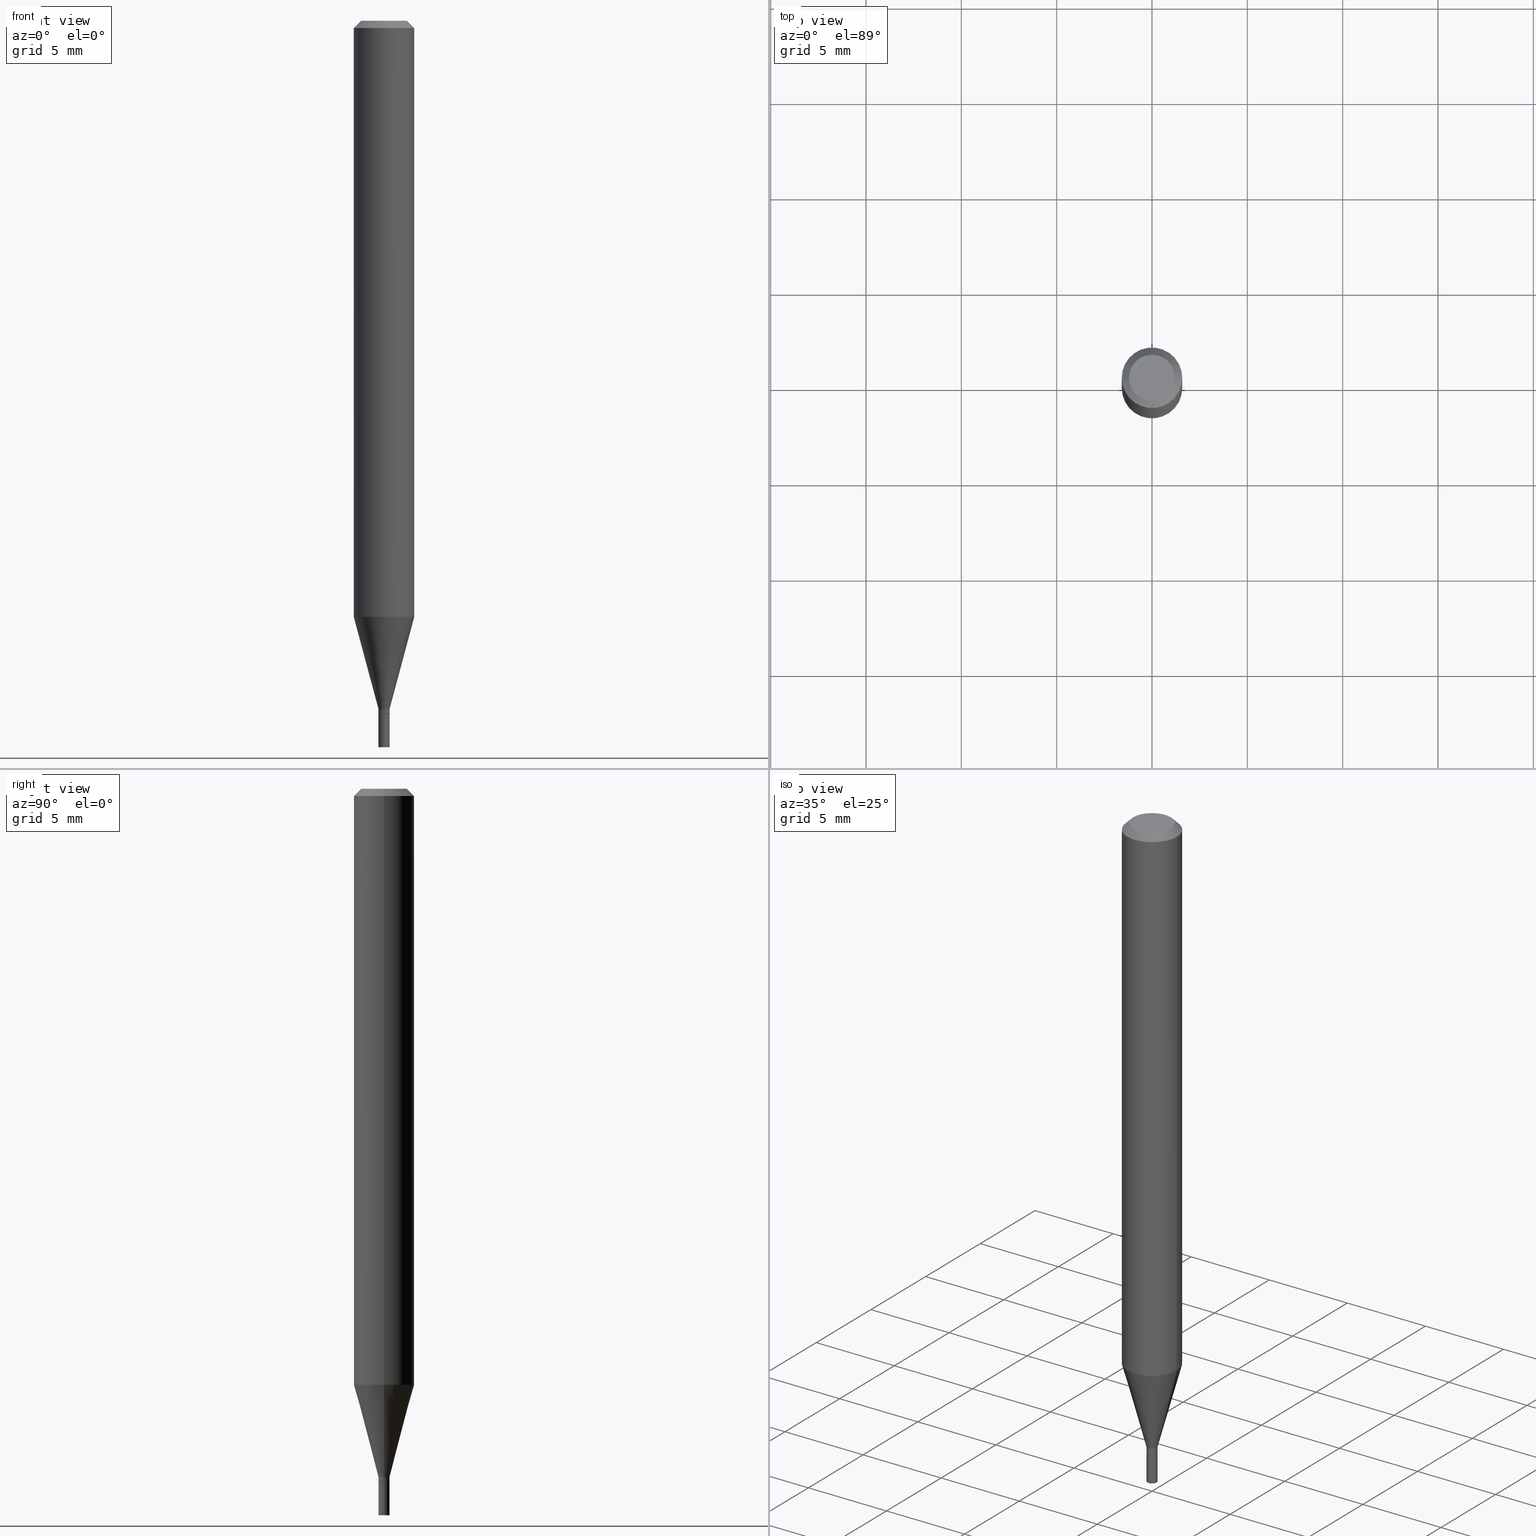
[diagram: canonical four-view strip — front | top / right | iso, engineering-drawing reading convention]
A machine part, canonical four-view strip (front | top / right | iso — engineering-drawing reading convention). The complete STEP part file that produces these views, byte-faithful:
ISO-10303-21;
HEADER;
FILE_DESCRIPTION (( 'STEP AP203' ),
    '1' );
FILE_NAME ('00532.STEP',
    '2024-03-19T21:33:18',
    ( '' ),
    ( '' ),
    'SwSTEP 2.0',
    'SolidWorks 2023',
    '' );
FILE_SCHEMA (( 'CONFIG_CONTROL_DESIGN' ));
ENDSEC;

DATA;
#1 = ORIENTED_EDGE ( 'NONE', *, *, #354, .T. ) ;
#2 = PERSON_AND_ORGANIZATION ( #157, #165 ) ;
#3 = CALENDAR_DATE ( 2024, 19, 3 ) ;
#4 = EDGE_CURVE ( 'NONE', #210, #382, #367, .T. ) ;
#5 = AXIS2_PLACEMENT_3D ( 'NONE', #356, #330, #303 ) ;
#6 = DIRECTION ( 'NONE',  ( -1.000000000000000000, 6.982962677686265922E-15, -4.876176775795935793E-29 ) ) ;
#7 = APPLICATION_PROTOCOL_DEFINITION ( 'international standard', 'config_control_design', 1994, #37 ) ;
#8 = CC_DESIGN_PERSON_AND_ORGANIZATION_ASSIGNMENT ( #368, #257, ( #42 ) ) ;
#9 = DIRECTION ( 'NONE',  ( -2.445468806185136597E-29, 3.491481338843145583E-15, 1.000000000000000000 ) ) ;
#10 = DIRECTION ( 'NONE',  ( -2.445468806185136597E-29, 3.491481338843145583E-15, 1.000000000000000000 ) ) ;
#11 = AXIS2_PLACEMENT_3D ( 'NONE', #435, #100, #6 ) ;
#12 = EDGE_LOOP ( 'NONE', ( #1, #214, #171, #169 ) ) ;
#13 = DIRECTION ( 'NONE',  ( 1.000000000000000000, -6.982962677686267499E-15, 4.852736867747366768E-29 ) ) ;
#14 = EDGE_CURVE ( 'NONE', #416, #250, #222, .T. ) ;
#15 = CYLINDRICAL_SURFACE ( 'NONE', #144, 0.01149999999999992174 ) ;
#16 = LINE ( 'NONE', #445, #63 ) ;
#17 = DIRECTION ( 'NONE',  ( -2.445468806185136597E-29, 3.491481338843145583E-15, 1.000000000000000000 ) ) ;
#18 = DIRECTION ( 'NONE',  ( 1.000000000000000000, -6.982962677686266711E-15, 4.876176775795935793E-29 ) ) ;
#19 = VECTOR ( 'NONE', #200, 39.37007874015748143 ) ;
#20 = CARTESIAN_POINT ( 'NONE',  ( 3.499465861650930802E-29, -4.996309795884541218E-15, -1.431000000000000050 ) ) ;
#21 = CARTESIAN_POINT ( 'NONE',  ( 3.499465861650930802E-29, -4.996309795884541218E-15, -1.431000000000000050 ) ) ;
#22 = ORIENTED_EDGE ( 'NONE', *, *, #433, .F. ) ;
#23 = EDGE_LOOP ( 'NONE', ( #365, #192, #321, #211 ) ) ;
#24 = AXIS2_PLACEMENT_3D ( 'NONE', #378, #51, #13 ) ;
#25 = APPROVAL_PERSON_ORGANIZATION ( #215, #232, #436 ) ;
#26 = DIRECTION ( 'NONE',  ( 1.000000000000000000, -6.982962677686266711E-15, 4.876176775795935793E-29 ) ) ;
#27 = PLANE ( 'NONE',  #5 ) ;
#28 = ADVANCED_FACE ( 'NONE', ( #180 ), #34, .F. ) ;
#29 = VERTEX_POINT ( 'NONE', #74 ) ;
#30 = PERSON_AND_ORGANIZATION_ROLE ( 'creator' ) ;
#31 = CIRCLE ( 'NONE', #459, 0.06250000000000000000 ) ;
#32 = EDGE_CURVE ( 'NONE', #432, #58, #48, .T. ) ;
#33 = CARTESIAN_POINT ( 'NONE',  ( 0.000000000000000000, 0.000000000000000000, 0.000000000000000000 ) ) ;
#34 = PLANE ( 'NONE',  #11 ) ;
#35 = PERSON_AND_ORGANIZATION_ROLE ( 'design_owner' ) ;
#36 = ADVANCED_FACE ( 'NONE', ( #406 ), #47, .F. ) ;
#37 = APPLICATION_CONTEXT ( 'configuration controlled 3d designs of mechanical parts and assemblies' ) ;
#38 = EDGE_LOOP ( 'NONE', ( #248, #217, #457, #294 ) ) ;
#39 = CONICAL_SURFACE ( 'NONE', #350, 0.06250000000000000000, 0.7853981633974386201 ) ;
#40 = CC_DESIGN_APPROVAL ( #128, ( #134 ) ) ;
#41 = FACE_OUTER_BOUND ( 'NONE', #38, .T. ) ;
#42 = PRODUCT_DEFINITION ( 'UNKNOWN', '', #134, #423 ) ;
#43 = DIRECTION ( 'NONE',  ( 1.000000000000000000, -6.982962677686267499E-15, 4.876176775795935793E-29 ) ) ;
#44 = CARTESIAN_POINT ( 'NONE',  ( 3.009553868105685827E-29, -4.296845309233809826E-15, -1.230665408813987893 ) ) ;
#45 = DIRECTION ( 'NONE',  ( 1.000000000000000000, -6.982962677686254878E-15, 0.000000000000000000 ) ) ;
#46 = AXIS2_PLACEMENT_3D ( 'NONE', #20, #216, #390 ) ;
#47 = PLANE ( 'NONE',  #346 ) ;
#48 = CIRCLE ( 'NONE', #79, 0.04749999999999999362 ) ;
#49 = FACE_OUTER_BOUND ( 'NONE', #352, .T. ) ;
#50 = EDGE_CURVE ( 'NONE', #416, #56, #274, .T. ) ;
#51 = DIRECTION ( 'NONE',  ( -2.445468806185136597E-29, 3.491481338843145583E-15, 1.000000000000000000 ) ) ;
#52 = APPLICATION_CONTEXT ( 'configuration controlled 3d designs of mechanical parts and assemblies' ) ;
#53 = LINE ( 'NONE', #203, #221 ) ;
#54 = VECTOR ( 'NONE', #349, 39.37007874015748143 ) ;
#55 = ORIENTED_EDGE ( 'NONE', *, *, #309, .T. ) ;
#56 = VERTEX_POINT ( 'NONE', #230 ) ;
#57 = EDGE_LOOP ( 'NONE', ( #155, #247, #387, #386 ) ) ;
#58 = VERTEX_POINT ( 'NONE', #306 ) ;
#59 = AXIS2_PLACEMENT_3D ( 'NONE', #419, #86, #384 ) ;
#60 = APPROVAL_PERSON_ORGANIZATION ( #255, #280, #189 ) ;
#61 = CLOSED_SHELL ( 'NONE', ( #342, #392, #224, #28 ) ) ;
#62 = PERSON_AND_ORGANIZATION_ROLE ( 'classification_officer' ) ;
#63 = VECTOR ( 'NONE', #348, 39.37007874015748143 ) ;
#64 = EDGE_LOOP ( 'NONE', ( #244, #82 ) ) ;
#65 = EDGE_CURVE ( 'NONE', #56, #412, #332, .T. ) ;
#66 = COORDINATED_UNIVERSAL_TIME_OFFSET ( 5, 0, .BEHIND. ) ;
#67 = CARTESIAN_POINT ( 'NONE',  ( 0.01100000000000000110, -5.073122385339090530E-15, -1.431000000000000050 ) ) ;
#68 =( NAMED_UNIT ( * ) PLANE_ANGLE_UNIT ( ) SI_UNIT ( $, .RADIAN. ) );
#69 = CC_DESIGN_PERSON_AND_ORGANIZATION_ASSIGNMENT ( #429, #30, ( #134 ) ) ;
#70 = ORIENTED_EDGE ( 'NONE', *, *, #312, .T. ) ;
#71 = DIRECTION ( 'NONE',  ( -2.445468806185136597E-29, 3.491481338843145583E-15, 1.000000000000000000 ) ) ;
#72 = DIRECTION ( 'NONE',  ( 1.000000000000000000, -6.982962677686267499E-15, 4.852736867747366768E-29 ) ) ;
#73 = DIRECTION ( 'NONE',  ( 1.000000000000000000, -6.982962677686267499E-15, 4.876176775795935793E-29 ) ) ;
#74 = CARTESIAN_POINT ( 'NONE',  ( 0.01149999999999999981, -5.317526079058111285E-15, -1.500000000000000222 ) ) ;
#75 = EDGE_LOOP ( 'NONE', ( #327, #418, #55, #376 ) ) ;
#76 = DIRECTION ( 'NONE',  ( 1.000000000000000000, -6.982962677686244622E-15, 0.000000000000000000 ) ) ;
#77 = AXIS2_PLACEMENT_3D ( 'NONE', #118, #415, #83 ) ;
#78 = CC_DESIGN_DATE_AND_TIME_ASSIGNMENT ( #262, #427, ( #42 ) ) ;
#79 = AXIS2_PLACEMENT_3D ( 'NONE', #374, #148, #72 ) ;
#80 = VERTEX_POINT ( 'NONE', #104 ) ;
#81 = DIRECTION ( 'NONE',  ( -2.445468806185136877E-29, 3.491481338843145188E-15, 1.000000000000000000 ) ) ;
#82 = ORIENTED_EDGE ( 'NONE', *, *, #164, .F. ) ;
#83 = DIRECTION ( 'NONE',  ( 1.000000000000000000, -6.982962677686266711E-15, 0.000000000000000000 ) ) ;
#84 = ORIENTED_EDGE ( 'NONE', *, *, #261, .T. ) ;
#85 = ORIENTED_EDGE ( 'NONE', *, *, #347, .F. ) ;
#86 = DIRECTION ( 'NONE',  ( -2.445468806185136597E-29, 3.491481338843145583E-15, 1.000000000000000000 ) ) ;
#87 = EDGE_LOOP ( 'NONE', ( #283, #207 ) ) ;
#88 = AXIS2_PLACEMENT_3D ( 'NONE', #239, #381, #131 ) ;
#89 = ORIENTED_EDGE ( 'NONE', *, *, #125, .T. ) ;
#90 = DIRECTION ( 'NONE',  ( 1.000000000000000000, -6.982962677686252511E-15, 0.000000000000000000 ) ) ;
#91 = DATE_TIME_ROLE ( 'classification_date' ) ;
#92 = CARTESIAN_POINT ( 'NONE',  ( -0.06249999999999997918, -3.852756099383747210E-15, -1.230665408813987893 ) ) ;
#93 = APPROVAL_DATE_TIME ( #302, #280 ) ;
#94 = FACE_OUTER_BOUND ( 'NONE', #87, .T. ) ;
#95 = PRODUCT_RELATED_PRODUCT_CATEGORY ( 'detail', '', ( #187 ) ) ;
#96 = SHAPE_DEFINITION_REPRESENTATION ( #223, #273 ) ;
#97 = CARTESIAN_POINT ( 'NONE',  ( -0.01149999999999992348, -4.912851640602709304E-15, -1.430500000000000327 ) ) ;
#98 = CIRCLE ( 'NONE', #424, 0.01149999999999999981 ) ;
#99 = LOCAL_TIME ( 17, 33, 18.00000000000000000, #66 ) ;
#100 = DIRECTION ( 'NONE',  ( 2.438088387897960049E-29, -3.491481338843145188E-15, -1.000000000000000000 ) ) ;
#101 = COORDINATED_UNIVERSAL_TIME_OFFSET ( 5, 0, .BEHIND. ) ;
#102 = DIRECTION ( 'NONE',  ( 1.000000000000000000, -6.982962677686252511E-15, 0.000000000000000000 ) ) ;
#103 = ADVANCED_FACE ( 'NONE', ( #443 ), #15, .T. ) ;
#104 = CARTESIAN_POINT ( 'NONE',  ( -0.06250000000000000000, -1.730519554808165837E-15, -0.01499999999999999944 ) ) ;
#105 = CYLINDRICAL_SURFACE ( 'NONE', #395, 0.06250000000000000000 ) ;
#106 = ORIENTED_EDGE ( 'NONE', *, *, #32, .T. ) ;
#107 = DIRECTION ( 'NONE',  ( 1.000000000000000000, -6.982962677686291165E-15, 0.000000000000000000 ) ) ;
#108 = CIRCLE ( 'NONE', #385, 0.06250000000000000000 ) ;
#109 = LOCAL_TIME ( 17, 33, 18.00000000000000000, #328 ) ;
#110 = LINE ( 'NONE', #449, #54 ) ;
#111 = DIRECTION ( 'NONE',  ( 1.000000000000000000, -6.982962677686266711E-15, 4.876176775795935232E-29 ) ) ;
#112 = DIRECTION ( 'NONE',  ( -1.000000000000000000, 6.982962677686266711E-15, 0.000000000000000000 ) ) ;
#113 = ADVANCED_FACE ( 'NONE', ( #114 ), #320, .T. ) ;
#114 = FACE_OUTER_BOUND ( 'NONE', #288, .T. ) ;
#115 = CARTESIAN_POINT ( 'NONE',  ( -0.01149999999999999981, -5.035053487462219287E-15, -1.500000000000000222 ) ) ;
#116 = AXIS2_PLACEMENT_3D ( 'NONE', #282, #307, #45 ) ;
#117 = CARTESIAN_POINT ( 'NONE',  ( -0.01100000000000000110, -4.915500867776819716E-15, -1.431000000000000050 ) ) ;
#118 = CARTESIAN_POINT ( 'NONE',  ( 3.668203209277705088E-31, -5.237222008264718399E-17, -0.01499999999999999944 ) ) ;
#119 = ADVANCED_FACE ( 'NONE', ( #41 ), #372, .T. ) ;
#120 = EDGE_CURVE ( 'NONE', #412, #322, #31, .T. ) ;
#121 = EDGE_LOOP ( 'NONE', ( #430, #289, #70, #353 ) ) ;
#122 = CONICAL_SURFACE ( 'NONE', #236, 0.01100000000000000110, 0.7853981633974718157 ) ;
#123 = AXIS2_PLACEMENT_3D ( 'NONE', #33, #331, #258 ) ;
#124 = DIRECTION ( 'NONE',  ( 1.000000000000000000, -6.982962677686266711E-15, 0.000000000000000000 ) ) ;
#125 = EDGE_CURVE ( 'NONE', #382, #210, #405, .T. ) ;
#126 = VERTEX_POINT ( 'NONE', #117 ) ;
#127 = VERTEX_POINT ( 'NONE', #414 ) ;
#128 = APPROVAL ( #137, 'UNSPECIFIED' ) ;
#129 = CARTESIAN_POINT ( 'NONE',  ( 3.498243127247838561E-29, -4.994564055215120503E-15, -1.430500000000000327 ) ) ;
#130 = CARTESIAN_POINT ( 'NONE',  ( 0.01149999999999992174, -8.030407079339151842E-17, 5.607603292165287521E-31 ) ) ;
#131 = DIRECTION ( 'NONE',  ( 1.000000000000000000, -6.982962677686254878E-15, 0.000000000000000000 ) ) ;
#132 = APPROVAL_ROLE ( '' ) ;
#133 = AXIS2_PLACEMENT_3D ( 'NONE', #447, #455, #112 ) ;
#134 = PRODUCT_DEFINITION_FORMATION_WITH_SPECIFIED_SOURCE ( 'ANY', '', #187, .NOT_KNOWN. ) ;
#135 = ORIENTED_EDGE ( 'NONE', *, *, #143, .T. ) ;
#136 = DIRECTION ( 'NONE',  ( -2.445468806185136597E-29, 3.491481338843145583E-15, 1.000000000000000000 ) ) ;
#137 = APPROVAL_STATUS ( 'not_yet_approved' ) ;
#138 = EDGE_LOOP ( 'NONE', ( #360, #448, #396, #22 ) ) ;
#139 = CALENDAR_DATE ( 2024, 19, 3 ) ;
#140 = ORIENTED_EDGE ( 'NONE', *, *, #252, .T. ) ;
#141 = PERSON_AND_ORGANIZATION_ROLE ( 'design_supplier' ) ;
#142 = EDGE_LOOP ( 'NONE', ( #297, #271, #185, #462 ) ) ;
#143 = EDGE_CURVE ( 'NONE', #56, #127, #357, .T. ) ;
#144 = AXIS2_PLACEMENT_3D ( 'NONE', #270, #159, #233 ) ;
#145 = DIRECTION ( 'NONE',  ( 1.000000000000000000, -6.982962677686254878E-15, 0.000000000000000000 ) ) ;
#146 = CALENDAR_DATE ( 2024, 19, 3 ) ;
#147 = LINE ( 'NONE', #358, #313 ) ;
#148 = DIRECTION ( 'NONE',  ( -2.445468806185136597E-29, 3.491481338843145583E-15, 1.000000000000000000 ) ) ;
#149 = EDGE_CURVE ( 'NONE', #319, #210, #147, .T. ) ;
#150 = CARTESIAN_POINT ( 'NONE',  ( 0.000000000000000000, 0.000000000000000000, 0.000000000000000000 ) ) ;
#151 = AXIS2_PLACEMENT_3D ( 'NONE', #301, #153, #111 ) ;
#152 = AXIS2_PLACEMENT_3D ( 'NONE', #21, #393, #318 ) ;
#153 = DIRECTION ( 'NONE',  ( -2.445468806185136597E-29, 3.491481338843145583E-15, 1.000000000000000000 ) ) ;
#154 = ADVANCED_FACE ( 'NONE', ( #179 ), #39, .T. ) ;
#155 = ORIENTED_EDGE ( 'NONE', *, *, #177, .T. ) ;
#156 = DIRECTION ( 'NONE',  ( 1.000000000000000000, -6.982962677686262766E-15, 0.000000000000000000 ) ) ;
#157 = PERSON ( 'UNSPECIFIED', 'UNSPECIFIED', 'UNSPECIFIED', ('UNSPECIFIED'), ('UNSPECIFIED'), ('UNSPECIFIED') ) ;
#158 = EDGE_CURVE ( 'NONE', #58, #336, #426, .T. ) ;
#159 = DIRECTION ( 'NONE',  ( -2.445468806185136597E-29, 3.491481338843145583E-15, 1.000000000000000000 ) ) ;
#160 = LINE ( 'NONE', #281, #196 ) ;
#161 = CARTESIAN_POINT ( 'NONE',  ( 3.499465861650930802E-29, -4.996309795884541218E-15, -1.431000000000000050 ) ) ;
#162 = CARTESIAN_POINT ( 'NONE',  ( 0.000000000000000000, 0.000000000000000000, 0.000000000000000000 ) ) ;
#163 = CIRCLE ( 'NONE', #375, 0.06250000000000000000 ) ;
#164 = EDGE_CURVE ( 'NONE', #319, #29, #98, .T. ) ;
#165 = ORGANIZATION ( 'UNSPECIFIED', 'UNSPECIFIED', '' ) ;
#166 = DIRECTION ( 'NONE',  ( -2.445468806185136597E-29, 3.491481338843145583E-15, 1.000000000000000000 ) ) ;
#167 = FACE_OUTER_BOUND ( 'NONE', #138, .T. ) ;
#168 = DIRECTION ( 'NONE',  ( -2.445468806185136877E-29, 3.491481338843145188E-15, 1.000000000000000000 ) ) ;
#169 = ORIENTED_EDGE ( 'NONE', *, *, #252, .F. ) ;
#170 = EDGE_CURVE ( 'NONE', #432, #80, #227, .T. ) ;
#171 = ORIENTED_EDGE ( 'NONE', *, *, #177, .F. ) ;
#172 = CONICAL_SURFACE ( 'NONE', #465, 0.01100000000000000110, 0.7853981633974718157 ) ;
#173 = VECTOR ( 'NONE', #168, 39.37007874015748143 ) ;
#174 = ADVANCED_FACE ( 'NONE', ( #339 ), #105, .T. ) ;
#175 = EDGE_LOOP ( 'NONE', ( #89, #287 ) ) ;
#176 = EDGE_LOOP ( 'NONE', ( #355, #135, #316, #388 ) ) ;
#177 = EDGE_CURVE ( 'NONE', #250, #416, #191, .T. ) ;
#178 = SECURITY_CLASSIFICATION_LEVEL ( 'unclassified' ) ;
#179 = FACE_OUTER_BOUND ( 'NONE', #75, .T. ) ;
#180 = FACE_OUTER_BOUND ( 'NONE', #175, .T. ) ;
#181 = DATE_AND_TIME ( #146, #286 ) ;
#182 = CC_DESIGN_APPROVAL ( #232, ( #42 ) ) ;
#183 = EDGE_LOOP ( 'NONE', ( #241, #254, #220, #458 ) ) ;
#184 = PERSON_AND_ORGANIZATION ( #157, #165 ) ;
#185 = ORIENTED_EDGE ( 'NONE', *, *, #125, .F. ) ;
#186 = COORDINATED_UNIVERSAL_TIME_OFFSET ( 5, 0, .BEHIND. ) ;
#187 = PRODUCT ( '00532', '00532', '', ( #264 ) ) ;
#188 = DIRECTION ( 'NONE',  ( -2.445468806185136877E-29, 3.491481338843145188E-15, 1.000000000000000000 ) ) ;
#189 = APPROVAL_ROLE ( '' ) ;
#190 = AXIS2_PLACEMENT_3D ( 'NONE', #380, #275, #409 ) ;
#191 = CIRCLE ( 'NONE', #343, 0.01149999999999992348 ) ;
#192 = ORIENTED_EDGE ( 'NONE', *, *, #32, .F. ) ;
#193 = DIRECTION ( 'NONE',  ( -1.000000000000000000, 6.982962677686266711E-15, 0.000000000000000000 ) ) ;
#194 = CARTESIAN_POINT ( 'NONE',  ( 3.499465861650930802E-29, -4.996309795884541218E-15, -1.431000000000000050 ) ) ;
#195 = CARTESIAN_POINT ( 'NONE',  ( -0.06250000000000000000, 4.440892098500626162E-16, -3.074334431409316114E-30 ) ) ;
#196 = VECTOR ( 'NONE', #442, 39.37007874015748143 ) ;
#197 = APPROVAL_PERSON_ORGANIZATION ( #184, #128, #132 ) ;
#198 = CLOSED_SHELL ( 'NONE', ( #103, #208, #154, #218, #113, #245, #174, #296, #36, #417, #317, #119 ) ) ;
#199 = CARTESIAN_POINT ( 'NONE',  ( -0.01149999999999992174, 8.171241461241096533E-17, -5.656775353793103064E-31 ) ) ;
#200 = DIRECTION ( 'NONE',  ( 0.7071067811865642261, -2.468850131082431399E-15, 0.7071067811865309194 ) ) ;
#201 = CARTESIAN_POINT ( 'NONE',  ( 3.009553868105685827E-29, -4.296845309233809826E-15, -1.230665408813987893 ) ) ;
#202 = CARTESIAN_POINT ( 'NONE',  ( 3.498243127247838561E-29, -4.994564055215120503E-15, -1.430500000000000327 ) ) ;
#203 = CARTESIAN_POINT ( 'NONE',  ( 0.01149999999999992001, -5.041699053289501888E-15, -1.421000000000000263 ) ) ;
#204 = CIRCLE ( 'NONE', #267, 0.01149999999999999981 ) ;
#205 = CC_DESIGN_APPROVAL ( #280, ( #334 ) ) ;
#206 = MANIFOLD_SOLID_BREP ( 'Body-Move/Copy2[1]', #61 ) ;
#207 = ORIENTED_EDGE ( 'NONE', *, *, #444, .F. ) ;
#208 = ADVANCED_FACE ( 'NONE', ( #345 ), #122, .T. ) ;
#209 = MANIFOLD_SOLID_BREP ( 'Body-Move/Copy2[2]', #198 ) ;
#210 = VERTEX_POINT ( 'NONE', #340 ) ;
#211 = ORIENTED_EDGE ( 'NONE', *, *, #437, .T. ) ;
#212 = CARTESIAN_POINT ( 'NONE',  ( 0.000000000000000000, 0.000000000000000000, 0.000000000000000000 ) ) ;
#213 = AXIS2_PLACEMENT_3D ( 'NONE', #231, #371, #43 ) ;
#214 = ORIENTED_EDGE ( 'NONE', *, *, #253, .T. ) ;
#215 = PERSON_AND_ORGANIZATION ( #157, #165 ) ;
#216 = DIRECTION ( 'NONE',  ( -2.445468806185136597E-29, 3.491481338843145583E-15, 1.000000000000000000 ) ) ;
#217 = ORIENTED_EDGE ( 'NONE', *, *, #14, .T. ) ;
#218 = ADVANCED_FACE ( 'NONE', ( #167 ), #453, .T. ) ;
#219 = APPLICATION_PROTOCOL_DEFINITION ( 'international standard', 'config_control_design', 1994, #52 ) ;
#220 = ORIENTED_EDGE ( 'NONE', *, *, #433, .T. ) ;
#221 = VECTOR ( 'NONE', #351, 39.37007874015748143 ) ;
#222 = CIRCLE ( 'NONE', #335, 0.01149999999999992348 ) ;
#223 = PRODUCT_DEFINITION_SHAPE ( 'NONE', 'NONE',  #42 ) ;
#224 = ADVANCED_FACE ( 'NONE', ( #407 ), #234, .T. ) ;
#225 = PERSON_AND_ORGANIZATION ( #157, #165 ) ;
#226 = EDGE_CURVE ( 'NONE', #127, #56, #452, .T. ) ;
#227 = LINE ( 'NONE', #441, #243 ) ;
#228 = DIRECTION ( 'NONE',  ( 2.438088387897960049E-29, -3.491481338843145188E-15, -1.000000000000000000 ) ) ;
#229 = AXIS2_PLACEMENT_3D ( 'NONE', #162, #314, #18 ) ;
#230 = CARTESIAN_POINT ( 'NONE',  ( -0.01149999999999992001, -4.366219333633723973E-15, -1.421000000000000263 ) ) ;
#231 = CARTESIAN_POINT ( 'NONE',  ( 0.000000000000000000, 0.000000000000000000, 0.000000000000000000 ) ) ;
#232 = APPROVAL ( #364, 'UNSPECIFIED' ) ;
#233 = DIRECTION ( 'NONE',  ( 1.000000000000000000, -6.982962677686266711E-15, 4.876176775795935232E-29 ) ) ;
#234 = CYLINDRICAL_SURFACE ( 'NONE', #285, 0.01149999999999999981 ) ;
#235 = CARTESIAN_POINT ( 'NONE',  ( 0.01100000000000000110, -5.073122385339090530E-15, -1.431000000000000050 ) ) ;
#236 = AXIS2_PLACEMENT_3D ( 'NONE', #194, #238, #76 ) ;
#237 = EDGE_CURVE ( 'NONE', #412, #80, #272, .T. ) ;
#238 = DIRECTION ( 'NONE',  ( -2.445468806185136597E-29, 3.491481338843145583E-15, 1.000000000000000000 ) ) ;
#239 = CARTESIAN_POINT ( 'NONE',  ( 3.475011173589079817E-29, -4.961394982496111147E-15, -1.421000000000000263 ) ) ;
#240 = CYLINDRICAL_SURFACE ( 'NONE', #213, 0.01149999999999999981 ) ;
#241 = ORIENTED_EDGE ( 'NONE', *, *, #237, .F. ) ;
#242 = ORIENTED_EDGE ( 'NONE', *, *, #268, .F. ) ;
#243 = VECTOR ( 'NONE', #466, 39.37007874015748854 ) ;
#244 = ORIENTED_EDGE ( 'NONE', *, *, #421, .F. ) ;
#245 = ADVANCED_FACE ( 'NONE', ( #408 ), #324, .T. ) ;
#246 = DIRECTION ( 'NONE',  ( 1.000000000000000000, -6.982962677686291165E-15, 0.000000000000000000 ) ) ;
#247 = ORIENTED_EDGE ( 'NONE', *, *, #50, .T. ) ;
#248 = ORIENTED_EDGE ( 'NONE', *, *, #50, .F. ) ;
#249 = LINE ( 'NONE', #130, #173 ) ;
#250 = VERTEX_POINT ( 'NONE', #373 ) ;
#251 = AXIS2_PLACEMENT_3D ( 'NONE', #446, #17, #246 ) ;
#252 = EDGE_CURVE ( 'NONE', #428, #250, #311, .T. ) ;
#253 = EDGE_CURVE ( 'NONE', #126, #416, #16, .T. ) ;
#254 = ORIENTED_EDGE ( 'NONE', *, *, #120, .T. ) ;
#255 = PERSON_AND_ORGANIZATION ( #157, #165 ) ;
#256 = DIRECTION ( 'NONE',  ( 1.000000000000000000, -6.982962677686265922E-15, 4.876176775795935793E-29 ) ) ;
#257 = PERSON_AND_ORGANIZATION_ROLE ( 'creator' ) ;
#258 = DIRECTION ( 'NONE',  ( 1.000000000000000000, 0.000000000000000000, 0.000000000000000000 ) ) ;
#259 = DIRECTION ( 'NONE',  ( -2.445468806185136597E-29, 3.491481338843145583E-15, 1.000000000000000000 ) ) ;
#260 = VECTOR ( 'NONE', #276, 39.37007874015748143 ) ;
#261 = EDGE_CURVE ( 'NONE', #58, #432, #290, .T. ) ;
#262 = DATE_AND_TIME ( #139, #401 ) ;
#263 = CARTESIAN_POINT ( 'NONE',  ( 3.668203209277704895E-29, -5.237222008264718177E-15, -1.500000000000000222 ) ) ;
#264 = MECHANICAL_CONTEXT ( 'NONE', #52, 'mechanical' ) ;
#265 = DIRECTION ( 'NONE',  ( -2.438088387897960049E-29, 3.491481338843145188E-15, 1.000000000000000000 ) ) ;
#266 = CARTESIAN_POINT ( 'NONE',  ( 3.668203209277705088E-31, -5.237222008264718399E-17, -0.01499999999999999944 ) ) ;
#267 = AXIS2_PLACEMENT_3D ( 'NONE', #263, #259, #402 ) ;
#268 = EDGE_CURVE ( 'NONE', #322, #412, #163, .T. ) ;
#269 = CARTESIAN_POINT ( 'NONE',  ( 0.06250000000000000000, -4.888073874380388472E-16, -0.01499999999999999944 ) ) ;
#270 = CARTESIAN_POINT ( 'NONE',  ( 0.000000000000000000, 0.000000000000000000, 0.000000000000000000 ) ) ;
#271 = ORIENTED_EDGE ( 'NONE', *, *, #149, .T. ) ;
#272 = LINE ( 'NONE', #195, #451 ) ;
#273 = ADVANCED_BREP_SHAPE_REPRESENTATION ( '00532', ( #206, #209, #123 ), #344 ) ;
#274 = LINE ( 'NONE', #199, #461 ) ;
#275 = DIRECTION ( 'NONE',  ( -2.445468806185136597E-29, 3.491481338843145583E-15, 1.000000000000000000 ) ) ;
#276 = DIRECTION ( 'NONE',  ( -0.2588190451025216277, 5.211531920934551831E-15, 0.9659258262890679791 ) ) ;
#277 = ORIENTED_EDGE ( 'NONE', *, *, #444, .T. ) ;
#278 = CARTESIAN_POINT ( 'NONE',  ( 0.06249999999999997918, -4.733280476589200707E-15, -1.230665408813987893 ) ) ;
#279 = CIRCLE ( 'NONE', #59, 0.01100000000000000110 ) ;
#280 = APPROVAL ( #431, 'UNSPECIFIED' ) ;
#281 = CARTESIAN_POINT ( 'NONE',  ( 0.06250000000000000000, -4.364351673553916694E-16, 3.047610484872459871E-30 ) ) ;
#282 = CARTESIAN_POINT ( 'NONE',  ( 3.475011173589079817E-29, -4.961394982496111147E-15, -1.421000000000000263 ) ) ;
#283 = ORIENTED_EDGE ( 'NONE', *, *, #354, .F. ) ;
#284 = CARTESIAN_POINT ( 'NONE',  ( 0.01149999999999999981, -5.076613866677933538E-15, -1.431000000000000050 ) ) ;
#285 = AXIS2_PLACEMENT_3D ( 'NONE', #150, #9, #73 ) ;
#286 = LOCAL_TIME ( 17, 33, 18.00000000000000000, #186 ) ;
#287 = ORIENTED_EDGE ( 'NONE', *, *, #4, .T. ) ;
#288 = EDGE_LOOP ( 'NONE', ( #420, #464, #242, #85 ) ) ;
#289 = ORIENTED_EDGE ( 'NONE', *, *, #164, .T. ) ;
#290 = CIRCLE ( 'NONE', #24, 0.04749999999999999362 ) ;
#291 = DIRECTION ( 'NONE',  ( 2.445468806185136597E-29, -3.491481338843145583E-15, -1.000000000000000000 ) ) ;
#292 = PERSON_AND_ORGANIZATION ( #157, #165 ) ;
#293 = UNCERTAINTY_MEASURE_WITH_UNIT (LENGTH_MEASURE( 1.000000000000000082E-05 ), #394, 'distance_accuracy_value', 'NONE');
#294 = ORIENTED_EDGE ( 'NONE', *, *, #143, .F. ) ;
#295 = APPROVAL_DATE_TIME ( #298, #128 ) ;
#296 = ADVANCED_FACE ( 'NONE', ( #310 ), #299, .T. ) ;
#297 = ORIENTED_EDGE ( 'NONE', *, *, #421, .T. ) ;
#298 = DATE_AND_TIME ( #3, #109 ) ;
#299 = CONICAL_SURFACE ( 'NONE', #133, 0.06250000000000000000, 0.7853981633974386201 ) ;
#300 = PLANE ( 'NONE',  #400 ) ;
#301 = CARTESIAN_POINT ( 'NONE',  ( 0.000000000000000000, 0.000000000000000000, 0.000000000000000000 ) ) ;
#302 = DATE_AND_TIME ( #398, #99 ) ;
#303 = DIRECTION ( 'NONE',  ( 1.000000000000000000, -6.982962677686265922E-15, 4.876176775795935793E-29 ) ) ;
#304 = CARTESIAN_POINT ( 'NONE',  ( 3.668203209277704895E-29, -5.237222008264718177E-15, -1.500000000000000222 ) ) ;
#305 = DIMENSIONAL_EXPONENTS ( 1.000000000000000000, 0.000000000000000000, 0.000000000000000000, 0.000000000000000000, 0.000000000000000000, 0.000000000000000000, 0.000000000000000000 ) ;
#306 = CARTESIAN_POINT ( 'NONE',  ( 0.04749999999999999362, -4.035134999187572707E-16, 2.926320210456084224E-16 ) ) ;
#307 = DIRECTION ( 'NONE',  ( -2.445468806185136597E-29, 3.491481338843145583E-15, 1.000000000000000000 ) ) ;
#308 = DIRECTION ( 'NONE',  ( 1.000000000000000000, -6.982962677686262766E-15, 0.000000000000000000 ) ) ;
#309 = EDGE_CURVE ( 'NONE', #336, #80, #366, .T. ) ;
#310 = FACE_OUTER_BOUND ( 'NONE', #23, .T. ) ;
#311 = LINE ( 'NONE', #235, #19 ) ;
#312 = EDGE_CURVE ( 'NONE', #29, #382, #110, .T. ) ;
#313 = VECTOR ( 'NONE', #370, 39.37007874015748143 ) ;
#314 = DIRECTION ( 'NONE',  ( -2.445468806185136597E-29, 3.491481338843145583E-15, 1.000000000000000000 ) ) ;
#315 = DIRECTION ( 'NONE',  ( -2.445468806185136597E-29, 3.491481338843145583E-15, 1.000000000000000000 ) ) ;
#316 = ORIENTED_EDGE ( 'NONE', *, *, #347, .T. ) ;
#317 = ADVANCED_FACE ( 'NONE', ( #49 ), #172, .T. ) ;
#318 = DIRECTION ( 'NONE',  ( 1.000000000000000000, -6.982962677686291165E-15, 0.000000000000000000 ) ) ;
#319 = VERTEX_POINT ( 'NONE', #115 ) ;
#320 = CONICAL_SURFACE ( 'NONE', #333, 0.01149999999999992001, 0.2617993877991502960 ) ;
#321 = ORIENTED_EDGE ( 'NONE', *, *, #170, .T. ) ;
#322 = VERTEX_POINT ( 'NONE', #278 ) ;
#323 = FACE_OUTER_BOUND ( 'NONE', #64, .T. ) ;
#324 = CONICAL_SURFACE ( 'NONE', #190, 0.01149999999999992001, 0.2617993877991502960 ) ;
#325 = DIRECTION ( 'NONE',  ( -2.445468806185136597E-29, 3.491481338843145583E-15, 1.000000000000000000 ) ) ;
#326 = APPROVAL_DATE_TIME ( #181, #232 ) ;
#327 = ORIENTED_EDGE ( 'NONE', *, *, #261, .F. ) ;
#328 = COORDINATED_UNIVERSAL_TIME_OFFSET ( 5, 0, .BEHIND. ) ;
#329 = CC_DESIGN_PERSON_AND_ORGANIZATION_ASSIGNMENT ( #292, #62, ( #334 ) ) ;
#330 = DIRECTION ( 'NONE',  ( -2.438088387897960049E-29, 3.491481338843145188E-15, 1.000000000000000000 ) ) ;
#331 = DIRECTION ( 'NONE',  ( 0.000000000000000000, 0.000000000000000000, 1.000000000000000000 ) ) ;
#332 = LINE ( 'NONE', #438, #260 ) ;
#333 = AXIS2_PLACEMENT_3D ( 'NONE', #338, #10, #145 ) ;
#334 = SECURITY_CLASSIFICATION ( '', '', #178 ) ;
#335 = AXIS2_PLACEMENT_3D ( 'NONE', #202, #166, #90 ) ;
#336 = VERTEX_POINT ( 'NONE', #269 ) ;
#337 = CC_DESIGN_PERSON_AND_ORGANIZATION_ASSIGNMENT ( #225, #35, ( #187 ) ) ;
#338 = CARTESIAN_POINT ( 'NONE',  ( 3.475011173589079817E-29, -4.961394982496111147E-15, -1.421000000000000263 ) ) ;
#339 = FACE_OUTER_BOUND ( 'NONE', #183, .T. ) ;
#340 = CARTESIAN_POINT ( 'NONE',  ( -0.01149999999999999981, -5.035053487462219287E-15, -1.431000000000000050 ) ) ;
#341 = DIRECTION ( 'NONE',  ( -2.445468806185136597E-29, 3.491481338843145583E-15, 1.000000000000000000 ) ) ;
#342 = ADVANCED_FACE ( 'NONE', ( #413 ), #240, .T. ) ;
#343 = AXIS2_PLACEMENT_3D ( 'NONE', #129, #361, #102 ) ;
#344 =( GEOMETRIC_REPRESENTATION_CONTEXT ( 3 ) GLOBAL_UNCERTAINTY_ASSIGNED_CONTEXT ( ( #293 ) ) GLOBAL_UNIT_ASSIGNED_CONTEXT ( ( #394, #68, #439 ) ) REPRESENTATION_CONTEXT ( 'NONE', 'WORKASPACE' ) );
#345 = FACE_OUTER_BOUND ( 'NONE', #12, .T. ) ;
#346 = AXIS2_PLACEMENT_3D ( 'NONE', #379, #228, #410 ) ;
#347 = EDGE_CURVE ( 'NONE', #127, #322, #53, .T. ) ;
#348 = DIRECTION ( 'NONE',  ( -0.7071067811865642261, 7.493145998870414114E-15, 0.7071067811865309194 ) ) ;
#349 = DIRECTION ( 'NONE',  ( -2.445468806185136877E-29, 3.491481338843145188E-15, 1.000000000000000000 ) ) ;
#350 = AXIS2_PLACEMENT_3D ( 'NONE', #266, #291, #193 ) ;
#351 = DIRECTION ( 'NONE',  ( 0.2588190451025216277, 1.565188264969619995E-15, 0.9659258262890679791 ) ) ;
#352 = EDGE_LOOP ( 'NONE', ( #422, #277, #140, #391 ) ) ;
#353 = ORIENTED_EDGE ( 'NONE', *, *, #4, .F. ) ;
#354 = EDGE_CURVE ( 'NONE', #428, #126, #411, .T. ) ;
#355 = ORIENTED_EDGE ( 'NONE', *, *, #65, .F. ) ;
#356 = CARTESIAN_POINT ( 'NONE',  ( 3.576687321579069994E-29, -5.368277968210015545E-15, -1.500000000000000222 ) ) ;
#357 = CIRCLE ( 'NONE', #88, 0.01149999999999992001 ) ;
#358 = CARTESIAN_POINT ( 'NONE',  ( -0.01149999999999999981, 8.171241461241151999E-17, -5.656775353793142476E-31 ) ) ;
#359 = CC_DESIGN_PERSON_AND_ORGANIZATION_ASSIGNMENT ( #2, #141, ( #134 ) ) ;
#360 = ORIENTED_EDGE ( 'NONE', *, *, #268, .T. ) ;
#361 = DIRECTION ( 'NONE',  ( -2.445468806185136597E-29, 3.491481338843145583E-15, 1.000000000000000000 ) ) ;
#362 = COORDINATED_UNIVERSAL_TIME_OFFSET ( 5, 0, .BEHIND. ) ;
#363 = CARTESIAN_POINT ( 'NONE',  ( 0.06250000000000000000, -4.811533449433679005E-16, -0.01499999999999999944 ) ) ;
#364 = APPROVAL_STATUS ( 'not_yet_approved' ) ;
#365 = ORIENTED_EDGE ( 'NONE', *, *, #158, .F. ) ;
#366 = CIRCLE ( 'NONE', #77, 0.06250000000000000000 ) ;
#367 = CIRCLE ( 'NONE', #152, 0.01149999999999999981 ) ;
#368 = PERSON_AND_ORGANIZATION ( #157, #165 ) ;
#369 = DATE_AND_TIME ( #403, #425 ) ;
#370 = DIRECTION ( 'NONE',  ( -2.445468806185136877E-29, 3.491481338843145188E-15, 1.000000000000000000 ) ) ;
#371 = DIRECTION ( 'NONE',  ( -2.445468806185136597E-29, 3.491481338843145583E-15, 1.000000000000000000 ) ) ;
#372 = CYLINDRICAL_SURFACE ( 'NONE', #151, 0.01149999999999992174 ) ;
#373 = CARTESIAN_POINT ( 'NONE',  ( 0.01149999999999992348, -5.074868126008511245E-15, -1.430500000000000327 ) ) ;
#374 = CARTESIAN_POINT ( 'NONE',  ( -7.156224791579416592E-45, 1.021719240628687565E-30, 2.926320210456058586E-16 ) ) ;
#375 = AXIS2_PLACEMENT_3D ( 'NONE', #201, #315, #156 ) ;
#376 = ORIENTED_EDGE ( 'NONE', *, *, #170, .F. ) ;
#377 = CARTESIAN_POINT ( 'NONE',  ( 3.668203209277705088E-31, -5.237222008264718399E-17, -0.01499999999999999944 ) ) ;
#378 = CARTESIAN_POINT ( 'NONE',  ( -7.156224791579416592E-45, 1.021719240628687565E-30, 2.926320210456058586E-16 ) ) ;
#379 = CARTESIAN_POINT ( 'NONE',  ( 3.316907271900976096E-16, 0.04749999999999999362, -1.952935307224647024E-17 ) ) ;
#380 = CARTESIAN_POINT ( 'NONE',  ( 3.475011173589079817E-29, -4.961394982496111147E-15, -1.421000000000000263 ) ) ;
#381 = DIRECTION ( 'NONE',  ( -2.445468806185136597E-29, 3.491481338843145583E-15, 1.000000000000000000 ) ) ;
#382 = VERTEX_POINT ( 'NONE', #284 ) ;
#383 = DIRECTION ( 'NONE',  ( 1.000000000000000000, -6.982962677686244622E-15, 0.000000000000000000 ) ) ;
#384 = DIRECTION ( 'NONE',  ( 1.000000000000000000, -6.982962677686244622E-15, 0.000000000000000000 ) ) ;
#385 = AXIS2_PLACEMENT_3D ( 'NONE', #377, #454, #124 ) ;
#386 = ORIENTED_EDGE ( 'NONE', *, *, #450, .F. ) ;
#387 = ORIENTED_EDGE ( 'NONE', *, *, #226, .F. ) ;
#388 = ORIENTED_EDGE ( 'NONE', *, *, #120, .F. ) ;
#389 =( LENGTH_UNIT ( ) NAMED_UNIT ( * ) SI_UNIT ( $, .METRE. ) );
#390 = DIRECTION ( 'NONE',  ( 1.000000000000000000, -6.982962677686244622E-15, 0.000000000000000000 ) ) ;
#391 = ORIENTED_EDGE ( 'NONE', *, *, #14, .F. ) ;
#392 = ADVANCED_FACE ( 'NONE', ( #323 ), #27, .F. ) ;
#393 = DIRECTION ( 'NONE',  ( -2.445468806185136597E-29, 3.491481338843145583E-15, 1.000000000000000000 ) ) ;
#394 =( CONVERSION_BASED_UNIT ( 'INCH', #463 ) LENGTH_UNIT ( ) NAMED_UNIT ( #305 ) );
#395 = AXIS2_PLACEMENT_3D ( 'NONE', #212, #136, #26 ) ;
#396 = ORIENTED_EDGE ( 'NONE', *, *, #309, .F. ) ;
#397 = DIRECTION ( 'NONE',  ( 0.7071067811865405783, -7.319954787623230802E-15, -0.7071067811865542341 ) ) ;
#398 = CALENDAR_DATE ( 2024, 19, 3 ) ;
#399 = CC_DESIGN_DATE_AND_TIME_ASSIGNMENT ( #369, #91, ( #334 ) ) ;
#400 = AXIS2_PLACEMENT_3D ( 'NONE', #440, #265, #256 ) ;
#401 = LOCAL_TIME ( 17, 33, 18.00000000000000000, #362 ) ;
#402 = DIRECTION ( 'NONE',  ( 1.000000000000000000, -6.982962677686291165E-15, 0.000000000000000000 ) ) ;
#403 = CALENDAR_DATE ( 2024, 19, 3 ) ;
#404 = CARTESIAN_POINT ( 'NONE',  ( -0.04749999999999999362, 3.578768372314215929E-16, 2.926320210456034427E-16 ) ) ;
#405 = CIRCLE ( 'NONE', #251, 0.01149999999999999981 ) ;
#406 = FACE_OUTER_BOUND ( 'NONE', #456, .T. ) ;
#407 = FACE_OUTER_BOUND ( 'NONE', #121, .T. ) ;
#408 = FACE_OUTER_BOUND ( 'NONE', #176, .T. ) ;
#409 = DIRECTION ( 'NONE',  ( 1.000000000000000000, -6.982962677686254878E-15, 0.000000000000000000 ) ) ;
#410 = DIRECTION ( 'NONE',  ( -1.000000000000000000, 6.982962677686265922E-15, -4.876176775795935793E-29 ) ) ;
#411 = CIRCLE ( 'NONE', #46, 0.01100000000000000110 ) ;
#412 = VERTEX_POINT ( 'NONE', #92 ) ;
#413 = FACE_OUTER_BOUND ( 'NONE', #142, .T. ) ;
#414 = CARTESIAN_POINT ( 'NONE',  ( 0.01149999999999992001, -5.041699053289501888E-15, -1.421000000000000263 ) ) ;
#415 = DIRECTION ( 'NONE',  ( -2.445468806185136597E-29, 3.491481338843145583E-15, 1.000000000000000000 ) ) ;
#416 = VERTEX_POINT ( 'NONE', #97 ) ;
#417 = ADVANCED_FACE ( 'NONE', ( #94 ), #300, .F. ) ;
#418 = ORIENTED_EDGE ( 'NONE', *, *, #158, .T. ) ;
#419 = CARTESIAN_POINT ( 'NONE',  ( 3.499465861650930802E-29, -4.996309795884541218E-15, -1.431000000000000050 ) ) ;
#420 = ORIENTED_EDGE ( 'NONE', *, *, #226, .T. ) ;
#421 = EDGE_CURVE ( 'NONE', #29, #319, #204, .T. ) ;
#422 = ORIENTED_EDGE ( 'NONE', *, *, #253, .F. ) ;
#423 = DESIGN_CONTEXT ( 'detailed design', #37, 'design' ) ;
#424 = AXIS2_PLACEMENT_3D ( 'NONE', #304, #325, #107 ) ;
#425 = LOCAL_TIME ( 17, 33, 18.00000000000000000, #101 ) ;
#426 = LINE ( 'NONE', #363, #434 ) ;
#427 = DATE_TIME_ROLE ( 'creation_date' ) ;
#428 = VERTEX_POINT ( 'NONE', #67 ) ;
#429 = PERSON_AND_ORGANIZATION ( #157, #165 ) ;
#430 = ORIENTED_EDGE ( 'NONE', *, *, #149, .F. ) ;
#431 = APPROVAL_STATUS ( 'not_yet_approved' ) ;
#432 = VERTEX_POINT ( 'NONE', #404 ) ;
#433 = EDGE_CURVE ( 'NONE', #322, #336, #160, .T. ) ;
#434 = VECTOR ( 'NONE', #397, 39.37007874015748854 ) ;
#435 = CARTESIAN_POINT ( 'NONE',  ( 8.030407079342705414E-17, 0.01149999999999500380, -1.431000000000000050 ) ) ;
#436 = APPROVAL_ROLE ( '' ) ;
#437 = EDGE_CURVE ( 'NONE', #80, #336, #108, .T. ) ;
#438 = CARTESIAN_POINT ( 'NONE',  ( -0.01149999999999992001, -4.879682567883699947E-15, -1.421000000000000263 ) ) ;
#439 =( NAMED_UNIT ( * ) SI_UNIT ( $, .STERADIAN. ) SOLID_ANGLE_UNIT ( ) );
#440 = CARTESIAN_POINT ( 'NONE',  ( 3.499465861650930802E-29, -4.996309795884541218E-15, -1.431000000000000050 ) ) ;
#441 = CARTESIAN_POINT ( 'NONE',  ( -0.06250000000000000000, 3.840629472727444916E-16, -0.01499999999999999944 ) ) ;
#442 = DIRECTION ( 'NONE',  ( -2.445468806185136877E-29, 3.491481338843145188E-15, 1.000000000000000000 ) ) ;
#443 = FACE_OUTER_BOUND ( 'NONE', #57, .T. ) ;
#444 = EDGE_CURVE ( 'NONE', #126, #428, #279, .T. ) ;
#445 = CARTESIAN_POINT ( 'NONE',  ( -0.01100000000000000110, -4.918150094950930917E-15, -1.431000000000000050 ) ) ;
#446 = CARTESIAN_POINT ( 'NONE',  ( 3.499465861650930802E-29, -4.996309795884541218E-15, -1.431000000000000050 ) ) ;
#447 = CARTESIAN_POINT ( 'NONE',  ( 3.668203209277705088E-31, -5.237222008264718399E-17, -0.01499999999999999944 ) ) ;
#448 = ORIENTED_EDGE ( 'NONE', *, *, #237, .T. ) ;
#449 = CARTESIAN_POINT ( 'NONE',  ( 0.01149999999999999981, -8.030407079339207309E-17, 5.607603292165326057E-31 ) ) ;
#450 = EDGE_CURVE ( 'NONE', #250, #127, #249, .T. ) ;
#451 = VECTOR ( 'NONE', #81, 39.37007874015748143 ) ;
#452 = CIRCLE ( 'NONE', #116, 0.01149999999999992001 ) ;
#453 = CYLINDRICAL_SURFACE ( 'NONE', #229, 0.06250000000000000000 ) ;
#454 = DIRECTION ( 'NONE',  ( -2.445468806185136597E-29, 3.491481338843145583E-15, 1.000000000000000000 ) ) ;
#455 = DIRECTION ( 'NONE',  ( 2.445468806185136597E-29, -3.491481338843145583E-15, -1.000000000000000000 ) ) ;
#456 = EDGE_LOOP ( 'NONE', ( #106, #84 ) ) ;
#457 = ORIENTED_EDGE ( 'NONE', *, *, #450, .T. ) ;
#458 = ORIENTED_EDGE ( 'NONE', *, *, #437, .F. ) ;
#459 = AXIS2_PLACEMENT_3D ( 'NONE', #44, #341, #308 ) ;
#460 = CC_DESIGN_SECURITY_CLASSIFICATION ( #334, ( #134 ) ) ;
#461 = VECTOR ( 'NONE', #188, 39.37007874015748143 ) ;
#462 = ORIENTED_EDGE ( 'NONE', *, *, #312, .F. ) ;
#463 = LENGTH_MEASURE_WITH_UNIT ( LENGTH_MEASURE( 0.02539999999999999897 ), #389 );
#464 = ORIENTED_EDGE ( 'NONE', *, *, #65, .T. ) ;
#465 = AXIS2_PLACEMENT_3D ( 'NONE', #161, #71, #383 ) ;
#466 = DIRECTION ( 'NONE',  ( -0.7071067811865405783, 2.468850131082184880E-15, -0.7071067811865542341 ) ) ;
ENDSEC;
END-ISO-10303-21;
